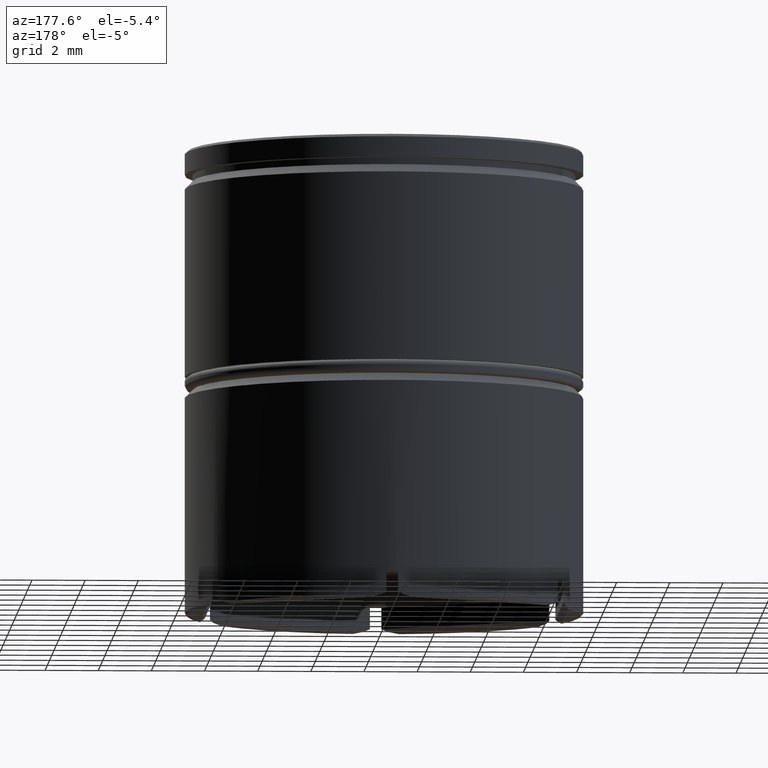
[diagram: clean part render]
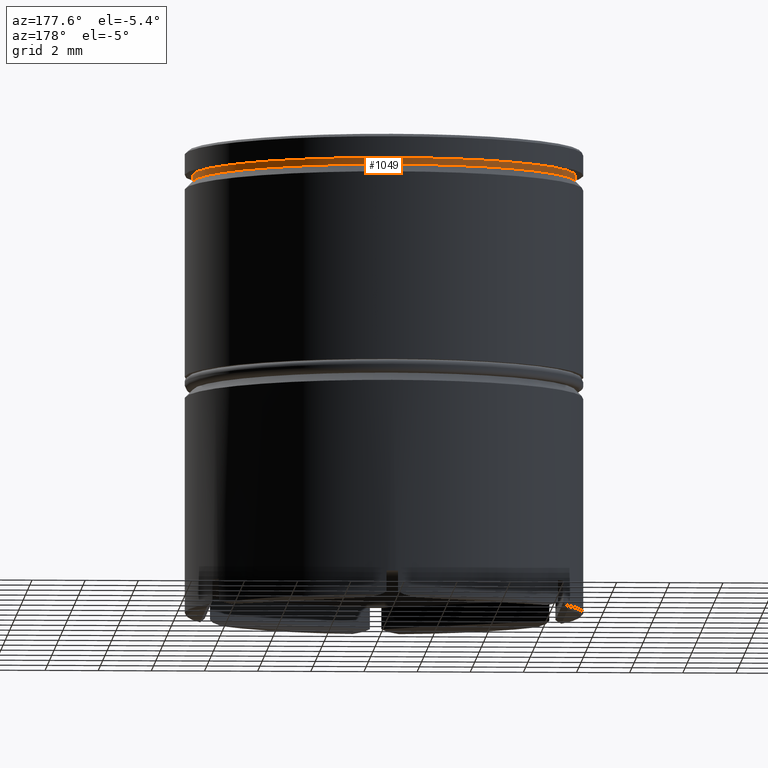
[diagram: same view with one face highlighted and labeled with its STEP entity id]
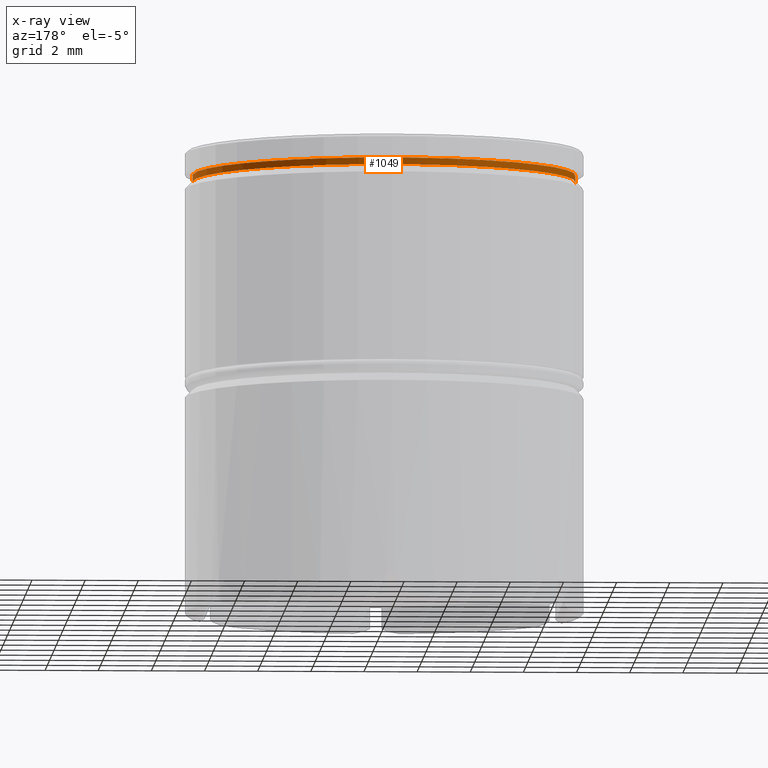
[diagram: x-ray of the same camera — body ghosted, the highlighted face saturated]
A machine part, auxiliary view. The second image highlights one B-rep face of the part: STEP entity #1049.
The next image is the same camera in x-ray: the body ghosted, the highlighted face saturated — about 0% of this face is hidden behind the body in this view.
In plain terms, the highlighted cylindrical surface (partial cylindrical patch) has radius 7.2 mm, axis along (-0, -0, 1).
Its self-contained STEP definition (entity closure, byte-faithful):
#13 = ORIENTED_EDGE ( 'NONE', *, *, #1625, .F. ) ;
#45 = LINE ( 'NONE', #130, #1213 ) ;
#130 = CARTESIAN_POINT ( 'NONE',  ( 7.200000000000000178, 0.000000000000000000, 0.000000000000000000 ) ) ;
#140 = CARTESIAN_POINT ( 'NONE',  ( 7.200000000000000178, 0.000000000000000000, -0.8749999999999998890 ) ) ;
#216 = CIRCLE ( 'NONE', #326, 7.200000000000000178 ) ;
#223 = VERTEX_POINT ( 'NONE', #1388 ) ;
#226 = CARTESIAN_POINT ( 'NONE',  ( 0.000000000000000000, 0.000000000000000000, -0.8749999999999998890 ) ) ;
#231 = VERTEX_POINT ( 'NONE', #245 ) ;
#245 = CARTESIAN_POINT ( 'NONE',  ( -7.200000000000000178, 8.817456953860942303E-16, -1.125000000000000222 ) ) ;
#305 = EDGE_LOOP ( 'NONE', ( #904, #1499, #13, #732 ) ) ;
#326 = AXIS2_PLACEMENT_3D ( 'NONE', #1274, #1398, #1138 ) ;
#499 = EDGE_CURVE ( 'NONE', #507, #231, #216, .T. ) ;
#507 = VERTEX_POINT ( 'NONE', #1630 ) ;
#525 = DIRECTION ( 'NONE',  ( -0.000000000000000000, -0.000000000000000000, 1.000000000000000000 ) ) ;
#577 = VERTEX_POINT ( 'NONE', #140 ) ;
#593 = EDGE_CURVE ( 'NONE', #231, #223, #882, .T. ) ;
#732 = ORIENTED_EDGE ( 'NONE', *, *, #1549, .F. ) ;
#751 = CARTESIAN_POINT ( 'NONE',  ( -7.200000000000000178, 8.817456953860942303E-16, 0.000000000000000000 ) ) ;
#871 = CARTESIAN_POINT ( 'NONE',  ( 0.000000000000000000, 0.000000000000000000, 0.000000000000000000 ) ) ;
#882 = LINE ( 'NONE', #751, #1407 ) ;
#904 = ORIENTED_EDGE ( 'NONE', *, *, #499, .T. ) ;
#925 = AXIS2_PLACEMENT_3D ( 'NONE', #226, #1595, #972 ) ;
#972 = DIRECTION ( 'NONE',  ( 1.000000000000000000, 0.000000000000000000, 0.000000000000000000 ) ) ;
#996 = AXIS2_PLACEMENT_3D ( 'NONE', #871, #1007, #1375 ) ;
#1000 = FACE_OUTER_BOUND ( 'NONE', #305, .T. ) ;
#1007 = DIRECTION ( 'NONE',  ( -0.000000000000000000, -0.000000000000000000, 1.000000000000000000 ) ) ;
#1049 = ADVANCED_FACE ( 'NONE', ( #1000 ), #1497, .T. ) ;
#1138 = DIRECTION ( 'NONE',  ( 1.000000000000000000, 0.000000000000000000, 0.000000000000000000 ) ) ;
#1213 = VECTOR ( 'NONE', #525, 1000.000000000000000 ) ;
#1215 = CIRCLE ( 'NONE', #925, 7.200000000000000178 ) ;
#1274 = CARTESIAN_POINT ( 'NONE',  ( 0.000000000000000000, 0.000000000000000000, -1.125000000000000222 ) ) ;
#1375 = DIRECTION ( 'NONE',  ( 1.000000000000000000, 0.000000000000000000, 0.000000000000000000 ) ) ;
#1385 = DIRECTION ( 'NONE',  ( -0.000000000000000000, -0.000000000000000000, 1.000000000000000000 ) ) ;
#1388 = CARTESIAN_POINT ( 'NONE',  ( -7.200000000000000178, 8.817456953860942303E-16, -0.8749999999999998890 ) ) ;
#1398 = DIRECTION ( 'NONE',  ( -0.000000000000000000, -0.000000000000000000, 1.000000000000000000 ) ) ;
#1407 = VECTOR ( 'NONE', #1385, 1000.000000000000000 ) ;
#1497 = CYLINDRICAL_SURFACE ( 'NONE', #996, 7.200000000000000178 ) ;
#1499 = ORIENTED_EDGE ( 'NONE', *, *, #593, .T. ) ;
#1549 = EDGE_CURVE ( 'NONE', #507, #577, #45, .T. ) ;
#1595 = DIRECTION ( 'NONE',  ( -0.000000000000000000, -0.000000000000000000, 1.000000000000000000 ) ) ;
#1625 = EDGE_CURVE ( 'NONE', #577, #223, #1215, .T. ) ;
#1630 = CARTESIAN_POINT ( 'NONE',  ( 7.200000000000000178, 0.000000000000000000, -1.125000000000000222 ) ) ;